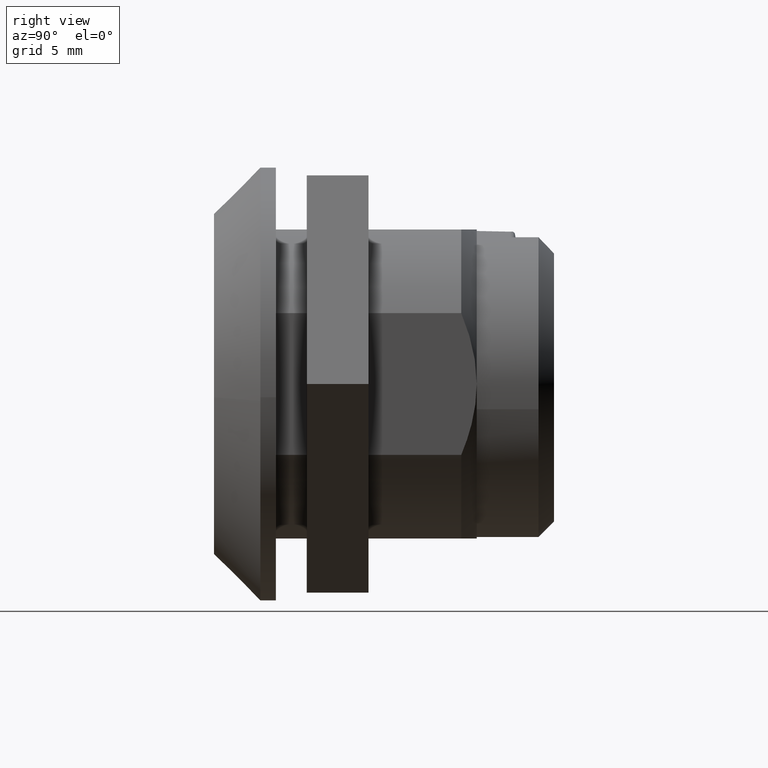
[diagram: clean part render]
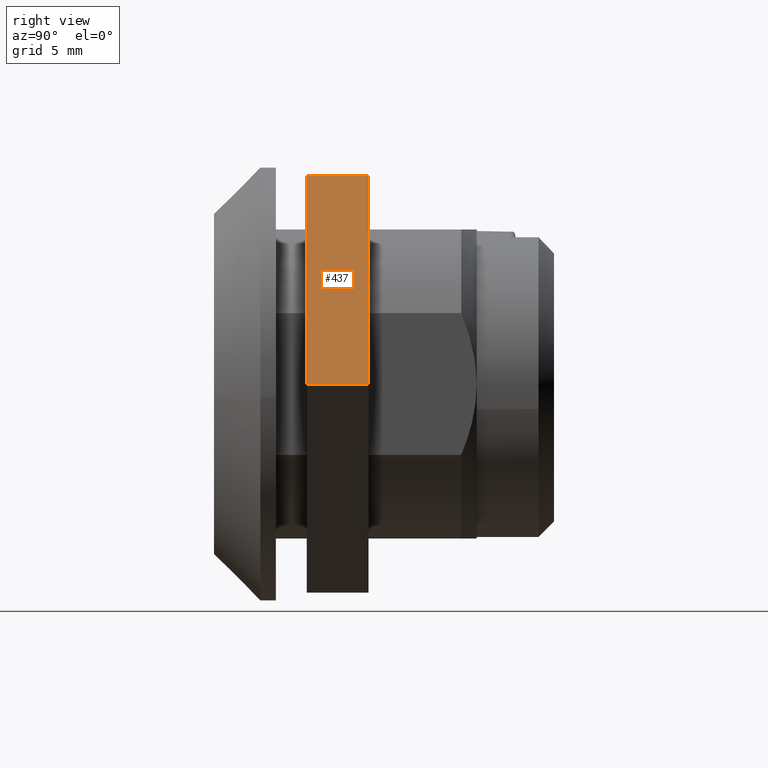
[diagram: same view with one face highlighted and labeled with its STEP entity id]
A machine part, right view. The second image highlights one B-rep face of the part: STEP entity #437.
In plain terms, the highlighted face is a freeform B-spline surface patch.
Its self-contained STEP definition (entity closure, byte-faithful):
#235=CARTESIAN_POINT('',(6.000000284984710,-15.588458008532101,-1.989520E-013));
#236=VERTEX_POINT('',#235);
#237=CARTESIAN_POINT('',(6.000000284984710,-7.794229004265699,13.500000641215600));
#238=VERTEX_POINT('',#237);
#239=CARTESIAN_POINT('',(6.000000284984710,-15.588458008532101,-1.989520E-013));
#240=CARTESIAN_POINT('',(6.000000284984710,-7.794229004265699,13.500000641215600));
#241=QUASI_UNIFORM_CURVE('',1,(#239,#240),.UNSPECIFIED.,.F.,.U.);
#242=EDGE_CURVE('',#236,#238,#241,.T.);
#291=CARTESIAN_POINT('',(2.000000094994905,-15.588458008532101,-1.989520E-013));
#292=VERTEX_POINT('',#291);
#293=CARTESIAN_POINT('',(2.000000094994905,-7.794229004265699,13.500000641215600));
#294=VERTEX_POINT('',#293);
#295=CARTESIAN_POINT('',(2.000000094994905,-15.588458008532101,-1.989520E-013));
#296=CARTESIAN_POINT('',(2.000000094994905,-7.794229004265699,13.500000641215600));
#297=QUASI_UNIFORM_CURVE('',1,(#295,#296),.UNSPECIFIED.,.F.,.U.);
#298=EDGE_CURVE('',#292,#294,#297,.T.);
#348=CARTESIAN_POINT('',(2.000000094994905,-15.588458008532101,-1.989520E-013));
#349=CARTESIAN_POINT('',(6.000000284984710,-15.588458008532101,-1.989520E-013));
#350=QUASI_UNIFORM_CURVE('',1,(#348,#349),.UNSPECIFIED.,.F.,.U.);
#351=EDGE_CURVE('',#292,#236,#350,.T.);
#418=CARTESIAN_POINT('',(2.000000094994905,-7.794229004265699,13.500000641215600));
#419=CARTESIAN_POINT('',(6.000000284984710,-7.794229004265699,13.500000641215600));
#420=QUASI_UNIFORM_CURVE('',1,(#418,#419),.UNSPECIFIED.,.F.,.U.);
#421=EDGE_CURVE('',#294,#238,#420,.T.);
#426=CARTESIAN_POINT('',(1.800199980610272,-15.977779805355119,-0.674325132591658));
#427=CARTESIAN_POINT('',(1.800199980610272,-7.404907068070989,14.174326015205880));
#428=CARTESIAN_POINT('',(6.199800399369344,-15.977779805355119,-0.674325132591658));
#429=CARTESIAN_POINT('',(6.199800399369344,-7.404907068070989,14.174326015205880));
#430=B_SPLINE_SURFACE_WITH_KNOTS('',1,1,((#426,#428),(#427,#429)),.UNSPECIFIED.,.F.,.F.,.U.,(2,2),(2,2),(0.0,17.145745474567690),(0.0,4.399600418759071),.UNSPECIFIED.);
#431=ORIENTED_EDGE('',*,*,#242,.T.);
#432=ORIENTED_EDGE('',*,*,#421,.F.);
#433=ORIENTED_EDGE('',*,*,#298,.F.);
#434=ORIENTED_EDGE('',*,*,#351,.T.);
#435=EDGE_LOOP('',(#431,#432,#433,#434));
#436=FACE_OUTER_BOUND('',#435,.T.);
#437=ADVANCED_FACE('',(#436),#430,.F.);